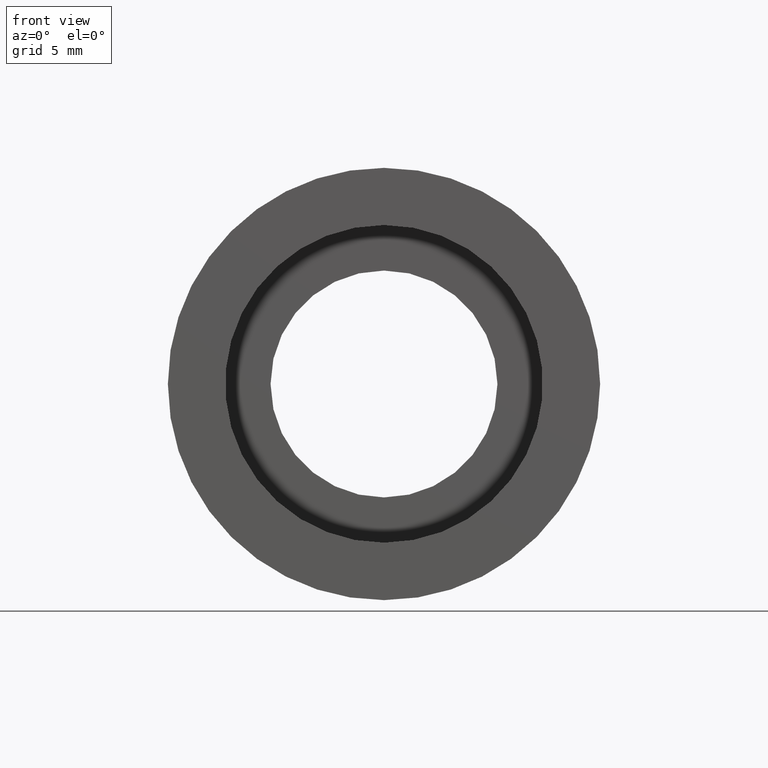
[diagram: clean part render]
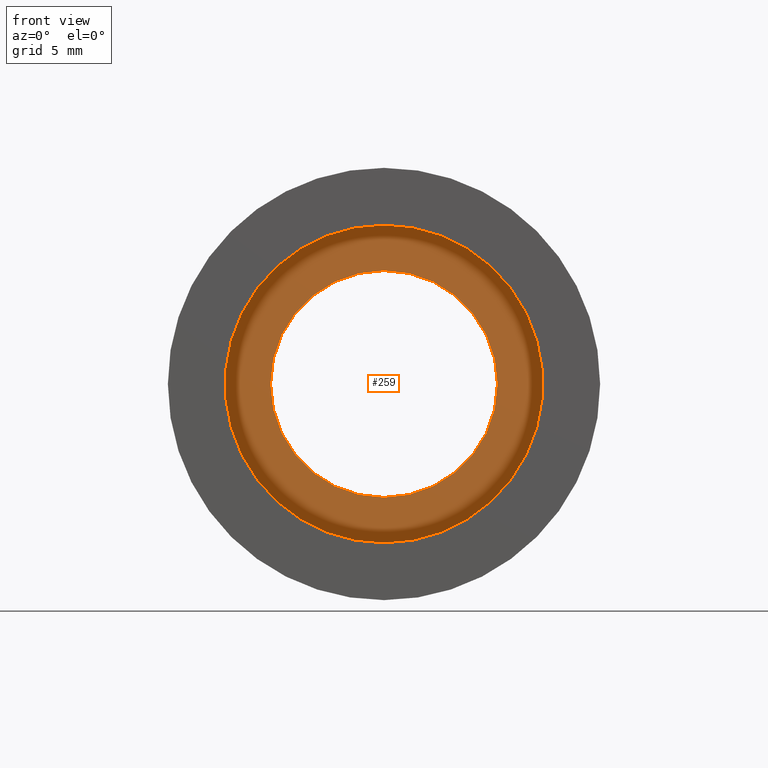
[diagram: same view with one face highlighted and labeled with its STEP entity id]
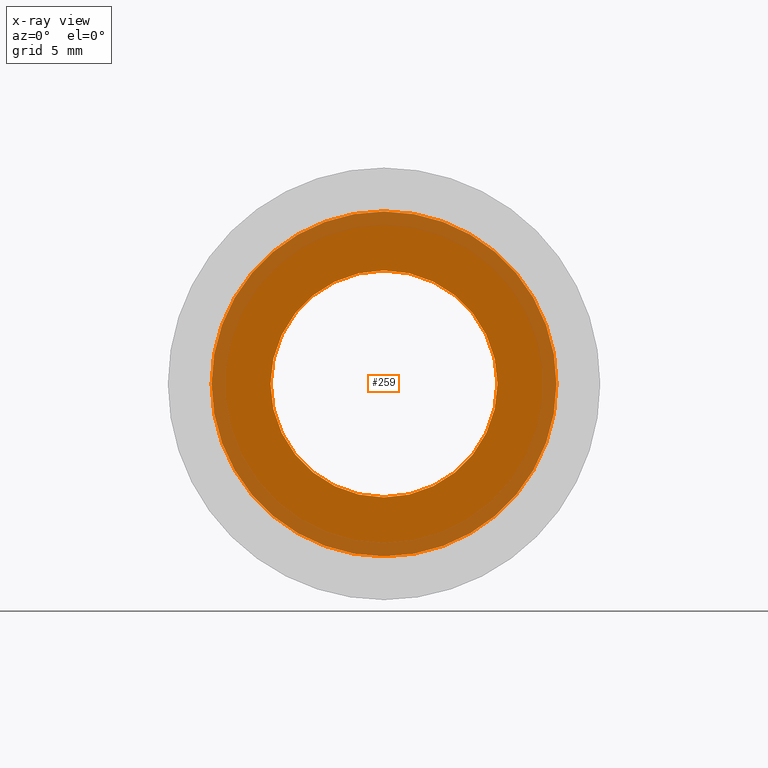
[diagram: x-ray of the same camera — body ghosted, the highlighted face saturated]
A machine part, front view. The second image highlights one B-rep face of the part: STEP entity #259.
The next image is the same camera in x-ray: the body ghosted, the highlighted face saturated — about 27% of this face is hidden behind the body in this view.
In plain terms, the highlighted planar face has unit normal (-0, 1, 0).
Its self-contained STEP definition (entity closure, byte-faithful):
#1 = CARTESIAN_POINT ( 'NONE',  ( 6.123233995736789000E-016, 5.499999999999976900, -5.000000000000019500 ) ) ;
#29 = CARTESIAN_POINT ( 'NONE',  ( 0.0000000000000000000, 5.499999999999976900, 0.0000000000000000000 ) ) ;
#54 = CIRCLE ( 'NONE', #64, 7.600000000000020100 ) ;
#55 = ORIENTED_EDGE ( 'NONE', *, *, #270, .F. ) ;
#64 = AXIS2_PLACEMENT_3D ( 'NONE', #247, #459, #342 ) ;
#68 = AXIS2_PLACEMENT_3D ( 'NONE', #515, #318, #617 ) ;
#85 = EDGE_CURVE ( 'NONE', #511, #308, #54, .T. ) ;
#107 = EDGE_CURVE ( 'NONE', #461, #271, #460, .T. ) ;
#123 = DIRECTION ( 'NONE',  ( 0.0000000000000000000, 0.0000000000000000000, 1.000000000000000000 ) ) ;
#124 = DIRECTION ( 'NONE',  ( -0.0000000000000000000, 1.000000000000000000, 0.0000000000000000000 ) ) ;
#132 = CARTESIAN_POINT ( 'NONE',  ( 0.0000000000000000000, 5.499999999999976900, 7.600000000000020100 ) ) ;
#160 = EDGE_LOOP ( 'NONE', ( #415, #573 ) ) ;
#164 = DIRECTION ( 'NONE',  ( -0.0000000000000000000, 1.000000000000000000, -0.0000000000000000000 ) ) ;
#247 = CARTESIAN_POINT ( 'NONE',  ( 0.0000000000000000000, 5.499999999999976900, 0.0000000000000000000 ) ) ;
#249 = EDGE_CURVE ( 'NONE', #271, #461, #391, .T. ) ;
#258 = DIRECTION ( 'NONE',  ( 0.0000000000000000000, 0.0000000000000000000, 1.000000000000000000 ) ) ;
#259 = ADVANCED_FACE ( 'NONE', ( #589, #601 ), #408, .F. ) ;
#266 = AXIS2_PLACEMENT_3D ( 'NONE', #357, #124, #123 ) ;
#270 = EDGE_CURVE ( 'NONE', #308, #511, #313, .T. ) ;
#271 = VERTEX_POINT ( 'NONE', #373 ) ;
#297 = AXIS2_PLACEMENT_3D ( 'NONE', #29, #164, #258 ) ;
#308 = VERTEX_POINT ( 'NONE', #132 ) ;
#313 = CIRCLE ( 'NONE', #68, 7.600000000000020100 ) ;
#318 = DIRECTION ( 'NONE',  ( -0.0000000000000000000, 1.000000000000000000, -0.0000000000000000000 ) ) ;
#342 = DIRECTION ( 'NONE',  ( 0.0000000000000000000, 0.0000000000000000000, 1.000000000000000000 ) ) ;
#346 = CARTESIAN_POINT ( 'NONE',  ( 0.0000000000000000000, 5.499999999999976900, 0.0000000000000000000 ) ) ;
#350 = AXIS2_PLACEMENT_3D ( 'NONE', #346, #444, #506 ) ;
#357 = CARTESIAN_POINT ( 'NONE',  ( 7.600000000000020100, 5.499999999999984000, 0.0000000000000000000 ) ) ;
#373 = CARTESIAN_POINT ( 'NONE',  ( 0.0000000000000000000, 5.499999999999976900, 5.000000000000019500 ) ) ;
#379 = CARTESIAN_POINT ( 'NONE',  ( 9.307315673519909100E-016, 5.499999999999976900, -7.600000000000020100 ) ) ;
#391 = CIRCLE ( 'NONE', #297, 5.000000000000019500 ) ;
#408 = PLANE ( 'NONE',  #266 ) ;
#415 = ORIENTED_EDGE ( 'NONE', *, *, #249, .T. ) ;
#444 = DIRECTION ( 'NONE',  ( -0.0000000000000000000, 1.000000000000000000, -0.0000000000000000000 ) ) ;
#459 = DIRECTION ( 'NONE',  ( -0.0000000000000000000, 1.000000000000000000, -0.0000000000000000000 ) ) ;
#460 = CIRCLE ( 'NONE', #350, 5.000000000000019500 ) ;
#461 = VERTEX_POINT ( 'NONE', #1 ) ;
#506 = DIRECTION ( 'NONE',  ( 0.0000000000000000000, 0.0000000000000000000, 1.000000000000000000 ) ) ;
#511 = VERTEX_POINT ( 'NONE', #379 ) ;
#515 = CARTESIAN_POINT ( 'NONE',  ( 0.0000000000000000000, 5.499999999999976900, 0.0000000000000000000 ) ) ;
#546 = EDGE_LOOP ( 'NONE', ( #55, #595 ) ) ;
#573 = ORIENTED_EDGE ( 'NONE', *, *, #107, .T. ) ;
#589 = FACE_OUTER_BOUND ( 'NONE', #546, .T. ) ;
#595 = ORIENTED_EDGE ( 'NONE', *, *, #85, .F. ) ;
#601 = FACE_BOUND ( 'NONE', #160, .T. ) ;
#617 = DIRECTION ( 'NONE',  ( 0.0000000000000000000, 0.0000000000000000000, 1.000000000000000000 ) ) ;